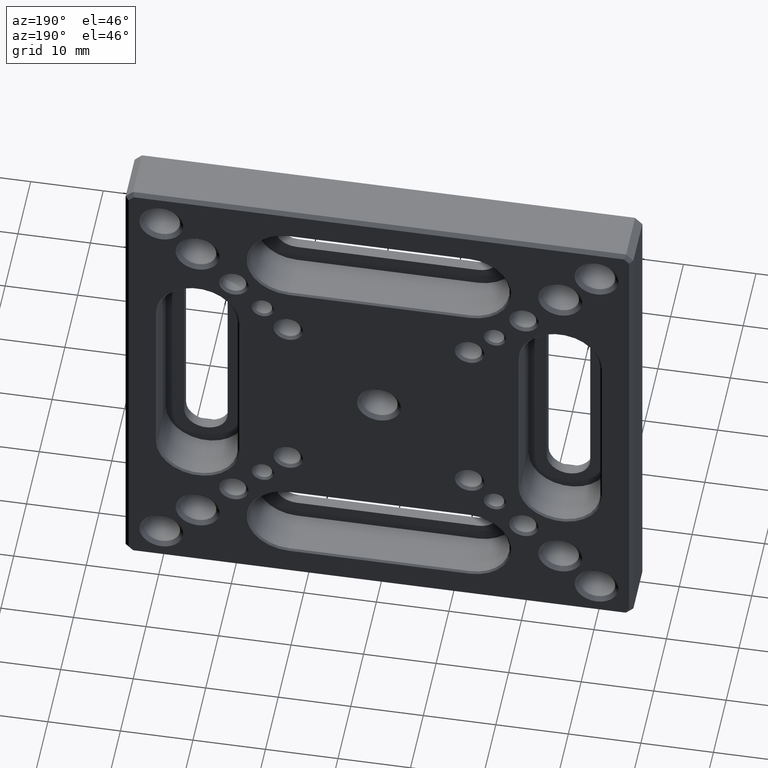
[diagram: clean part render]
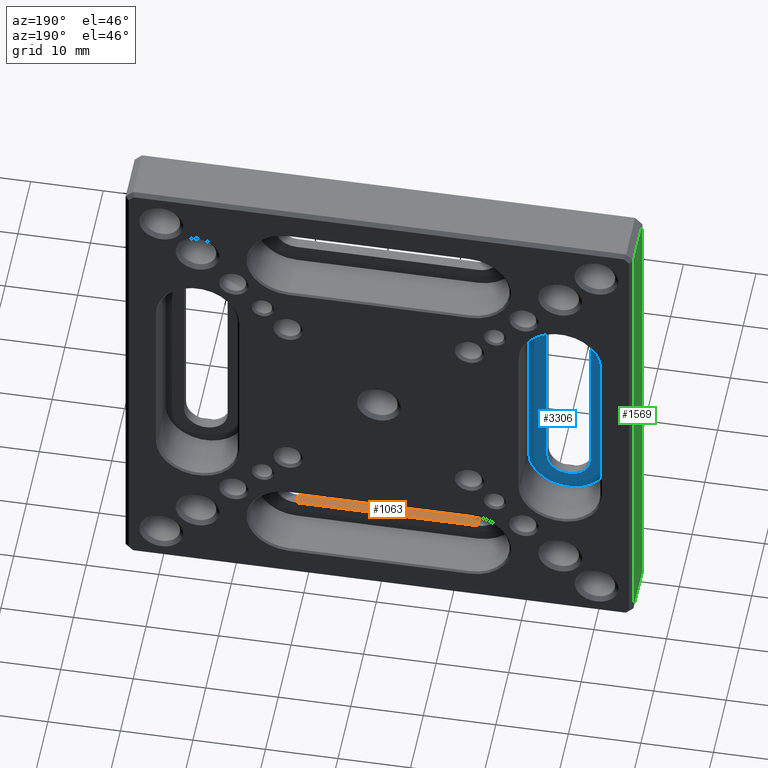
[diagram: same view with three faces highlighted in distinct colors, each labeled with its STEP entity id]
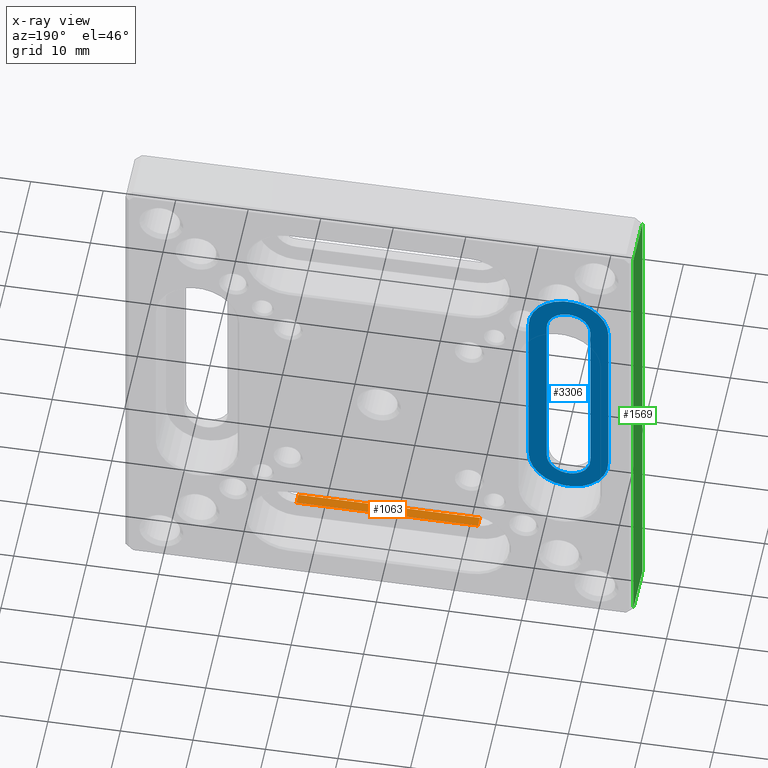
[diagram: x-ray of the same camera — body ghosted, the three highlighted faces saturated]
A machine part, auxiliary view with three faces highlighted in distinct colors.
The next image is the same camera in x-ray (body ghosted, the three faces saturated) — at least one of them is partly hidden behind the body in this view.
Their STEP definitions:

[orange] entity #1063 — the highlighted planar face has unit normal (0, 0, -1).
#135 = VECTOR ( 'NONE', #2198, 1000.000000000000000 ) ;
#272 = CARTESIAN_POINT ( 'NONE',  ( -12.50000000000000533, 1.500000000000000444, -28.00000000000000355 ) ) ;
#277 = LINE ( 'NONE', #568, #1849 ) ;
#290 = VECTOR ( 'NONE', #392, 1000.000000000000000 ) ;
#337 = LINE ( 'NONE', #1181, #290 ) ;
#364 = CARTESIAN_POINT ( 'NONE',  ( -12.50000000000000533, 1.500000000000000444, -28.00000000000000355 ) ) ;
#392 = DIRECTION ( 'NONE',  ( -0.000000000000000000, 1.000000000000000000, -0.000000000000000000 ) ) ;
#414 = CARTESIAN_POINT ( 'NONE',  ( -12.50000000000000533, 0.000000000000000000, -28.00000000000000355 ) ) ;
#458 = ORIENTED_EDGE ( 'NONE', *, *, #1078, .T. ) ;
#545 = EDGE_CURVE ( 'NONE', #2305, #1794, #277, .T. ) ;
#568 = CARTESIAN_POINT ( 'NONE',  ( -12.50000000000000533, 0.000000000000000000, -28.00000000000000355 ) ) ;
#607 = AXIS2_PLACEMENT_3D ( 'NONE', #414, #1183, #2453 ) ;
#687 = VERTEX_POINT ( 'NONE', #2732 ) ;
#696 = EDGE_CURVE ( 'NONE', #902, #687, #1151, .T. ) ;
#809 = DIRECTION ( 'NONE',  ( -1.000000000000000000, -0.000000000000000000, -0.000000000000000000 ) ) ;
#902 = VERTEX_POINT ( 'NONE', #272 ) ;
#907 = CARTESIAN_POINT ( 'NONE',  ( 12.49999999999999467, 0.000000000000000000, -28.00000000000000355 ) ) ;
#941 = FACE_OUTER_BOUND ( 'NONE', #1631, .T. ) ;
#1012 = ORIENTED_EDGE ( 'NONE', *, *, #1245, .F. ) ;
#1063 = ADVANCED_FACE ( 'NONE', ( #941 ), #2778, .F. ) ;
#1078 = EDGE_CURVE ( 'NONE', #2305, #687, #2214, .T. ) ;
#1151 = LINE ( 'NONE', #364, #1258 ) ;
#1181 = CARTESIAN_POINT ( 'NONE',  ( -12.50000000000000533, 0.000000000000000000, -28.00000000000000355 ) ) ;
#1183 = DIRECTION ( 'NONE',  ( 0.000000000000000000, 0.000000000000000000, -1.000000000000000000 ) ) ;
#1245 = EDGE_CURVE ( 'NONE', #1794, #902, #337, .T. ) ;
#1258 = VECTOR ( 'NONE', #2473, 1000.000000000000000 ) ;
#1330 = CARTESIAN_POINT ( 'NONE',  ( 12.49999999999999467, 0.000000000000000000, -28.00000000000000355 ) ) ;
#1631 = EDGE_LOOP ( 'NONE', ( #3000, #1012, #2637, #458 ) ) ;
#1794 = VERTEX_POINT ( 'NONE', #2012 ) ;
#1849 = VECTOR ( 'NONE', #809, 1000.000000000000000 ) ;
#2012 = CARTESIAN_POINT ( 'NONE',  ( -12.50000000000000533, 0.000000000000000000, -28.00000000000000355 ) ) ;
#2198 = DIRECTION ( 'NONE',  ( -0.000000000000000000, 1.000000000000000000, -0.000000000000000000 ) ) ;
#2214 = LINE ( 'NONE', #907, #135 ) ;
#2305 = VERTEX_POINT ( 'NONE', #1330 ) ;
#2453 = DIRECTION ( 'NONE',  ( -1.000000000000000000, 0.000000000000000000, -0.000000000000000000 ) ) ;
#2473 = DIRECTION ( 'NONE',  ( 1.000000000000000000, -0.000000000000000000, 0.000000000000000000 ) ) ;
#2637 = ORIENTED_EDGE ( 'NONE', *, *, #545, .F. ) ;
#2732 = CARTESIAN_POINT ( 'NONE',  ( 12.49999999999999467, 1.500000000000000444, -28.00000000000000355 ) ) ;
#2778 = PLANE ( 'NONE',  #607 ) ;
#3000 = ORIENTED_EDGE ( 'NONE', *, *, #696, .F. ) ;

[blue] entity #3306 — the highlighted planar face has unit normal (0, 1, 0).
#69 = DIRECTION ( 'NONE',  ( -0.000000000000000000, -1.000000000000000000, -0.000000000000000000 ) ) ;
#70 = ORIENTED_EDGE ( 'NONE', *, *, #1432, .T. ) ;
#130 = CARTESIAN_POINT ( 'NONE',  ( -25.00000000000000711, 1.500000000000000444, 12.49999999999999645 ) ) ;
#175 = CARTESIAN_POINT ( 'NONE',  ( -30.50000000000000711, 1.500000000000000444, -12.50000000000000355 ) ) ;
#179 = AXIS2_PLACEMENT_3D ( 'NONE', #639, #1400, #347 ) ;
#185 = CIRCLE ( 'NONE', #2727, 5.499999999999998224 ) ;
#198 = ORIENTED_EDGE ( 'NONE', *, *, #1431, .T. ) ;
#204 = EDGE_CURVE ( 'NONE', #330, #1111, #1189, .T. ) ;
#211 = LINE ( 'NONE', #3347, #2693 ) ;
#213 = VERTEX_POINT ( 'NONE', #655 ) ;
#330 = VERTEX_POINT ( 'NONE', #1552 ) ;
#347 = DIRECTION ( 'NONE',  ( 0.000000000000000000, -0.000000000000000000, 1.000000000000000000 ) ) ;
#382 = PLANE ( 'NONE',  #179 ) ;
#413 = ORIENTED_EDGE ( 'NONE', *, *, #444, .T. ) ;
#417 = AXIS2_PLACEMENT_3D ( 'NONE', #863, #601, #1608 ) ;
#444 = EDGE_CURVE ( 'NONE', #213, #1809, #793, .T. ) ;
#479 = VERTEX_POINT ( 'NONE', #2435 ) ;
#525 = VECTOR ( 'NONE', #2513, 1000.000000000000000 ) ;
#601 = DIRECTION ( 'NONE',  ( 0.000000000000000000, 1.000000000000000000, 0.000000000000000000 ) ) ;
#617 = AXIS2_PLACEMENT_3D ( 'NONE', #1381, #69, #865 ) ;
#639 = CARTESIAN_POINT ( 'NONE',  ( -25.00000000000000711, 1.500000000000000444, -12.50000000000000355 ) ) ;
#655 = CARTESIAN_POINT ( 'NONE',  ( -19.50000000000001066, 1.500000000000000444, -12.50000000000000355 ) ) ;
#713 = DIRECTION ( 'NONE',  ( 0.000000000000000000, 0.000000000000000000, 1.000000000000000000 ) ) ;
#793 = CIRCLE ( 'NONE', #417, 5.499999999999998224 ) ;
#863 = CARTESIAN_POINT ( 'NONE',  ( -25.00000000000000711, 1.500000000000000444, -12.50000000000000355 ) ) ;
#865 = DIRECTION ( 'NONE',  ( 0.000000000000000000, 0.000000000000000000, 1.000000000000000000 ) ) ;
#870 = ORIENTED_EDGE ( 'NONE', *, *, #204, .T. ) ;
#897 = DIRECTION ( 'NONE',  ( 0.000000000000000000, 0.000000000000000000, 1.000000000000000000 ) ) ;
#964 = EDGE_CURVE ( 'NONE', #1945, #213, #1654, .T. ) ;
#1044 = DIRECTION ( 'NONE',  ( -0.000000000000000000, -0.000000000000000000, -1.000000000000000000 ) ) ;
#1090 = CARTESIAN_POINT ( 'NONE',  ( -30.50000000000000711, 1.500000000000000444, -12.50000000000000355 ) ) ;
#1111 = VERTEX_POINT ( 'NONE', #1987 ) ;
#1135 = ORIENTED_EDGE ( 'NONE', *, *, #964, .T. ) ;
#1167 = CIRCLE ( 'NONE', #617, 2.999999999999999112 ) ;
#1178 = CARTESIAN_POINT ( 'NONE',  ( -30.50000000000000711, 1.500000000000000444, 12.49999999999999467 ) ) ;
#1189 = LINE ( 'NONE', #1440, #525 ) ;
#1284 = CARTESIAN_POINT ( 'NONE',  ( -25.00000000000000711, 1.500000000000000444, 12.49999999999999645 ) ) ;
#1381 = CARTESIAN_POINT ( 'NONE',  ( -25.00000000000000711, 1.500000000000000444, -12.50000000000000355 ) ) ;
#1400 = DIRECTION ( 'NONE',  ( 0.000000000000000000, 1.000000000000000000, 0.000000000000000000 ) ) ;
#1431 = EDGE_CURVE ( 'NONE', #3139, #330, #1565, .T. ) ;
#1432 = EDGE_CURVE ( 'NONE', #1809, #2814, #3194, .T. ) ;
#1440 = CARTESIAN_POINT ( 'NONE',  ( -28.00000000000000711, 1.500000000000000444, 12.49999999999999645 ) ) ;
#1457 = AXIS2_PLACEMENT_3D ( 'NONE', #1284, #1559, #1844 ) ;
#1552 = CARTESIAN_POINT ( 'NONE',  ( -28.00000000000000711, 1.500000000000000444, 12.49999999999999645 ) ) ;
#1559 = DIRECTION ( 'NONE',  ( -0.000000000000000000, -1.000000000000000000, -0.000000000000000000 ) ) ;
#1565 = CIRCLE ( 'NONE', #1457, 2.999999999999999112 ) ;
#1567 = EDGE_CURVE ( 'NONE', #2814, #1945, #185, .T. ) ;
#1589 = VECTOR ( 'NONE', #1044, 1000.000000000000000 ) ;
#1608 = DIRECTION ( 'NONE',  ( 0.000000000000000000, 0.000000000000000000, 1.000000000000000000 ) ) ;
#1654 = LINE ( 'NONE', #2711, #1589 ) ;
#1667 = EDGE_LOOP ( 'NONE', ( #198, #870, #2270, #3337 ) ) ;
#1783 = EDGE_CURVE ( 'NONE', #479, #3139, #211, .T. ) ;
#1809 = VERTEX_POINT ( 'NONE', #175 ) ;
#1829 = ORIENTED_EDGE ( 'NONE', *, *, #1567, .T. ) ;
#1844 = DIRECTION ( 'NONE',  ( 0.000000000000000000, 0.000000000000000000, 1.000000000000000000 ) ) ;
#1945 = VERTEX_POINT ( 'NONE', #2992 ) ;
#1947 = DIRECTION ( 'NONE',  ( 0.000000000000000000, 1.000000000000000000, 0.000000000000000000 ) ) ;
#1958 = FACE_BOUND ( 'NONE', #1667, .T. ) ;
#1987 = CARTESIAN_POINT ( 'NONE',  ( -28.00000000000000711, 1.500000000000000444, -12.50000000000000355 ) ) ;
#2123 = VECTOR ( 'NONE', #2654, 1000.000000000000000 ) ;
#2204 = EDGE_LOOP ( 'NONE', ( #413, #70, #1829, #1135 ) ) ;
#2270 = ORIENTED_EDGE ( 'NONE', *, *, #3417, .T. ) ;
#2435 = CARTESIAN_POINT ( 'NONE',  ( -22.00000000000001066, 1.500000000000000444, -12.50000000000000355 ) ) ;
#2513 = DIRECTION ( 'NONE',  ( 0.000000000000000000, 0.000000000000000000, -1.000000000000000000 ) ) ;
#2616 = CARTESIAN_POINT ( 'NONE',  ( -22.00000000000001066, 1.500000000000000444, 12.49999999999999645 ) ) ;
#2654 = DIRECTION ( 'NONE',  ( 0.000000000000000000, 0.000000000000000000, 1.000000000000000000 ) ) ;
#2693 = VECTOR ( 'NONE', #713, 1000.000000000000000 ) ;
#2711 = CARTESIAN_POINT ( 'NONE',  ( -19.50000000000001066, 1.500000000000000444, -12.50000000000000355 ) ) ;
#2716 = FACE_OUTER_BOUND ( 'NONE', #2204, .T. ) ;
#2727 = AXIS2_PLACEMENT_3D ( 'NONE', #130, #1947, #897 ) ;
#2814 = VERTEX_POINT ( 'NONE', #1178 ) ;
#2992 = CARTESIAN_POINT ( 'NONE',  ( -19.50000000000001066, 1.500000000000000444, 12.49999999999999645 ) ) ;
#3139 = VERTEX_POINT ( 'NONE', #2616 ) ;
#3194 = LINE ( 'NONE', #1090, #2123 ) ;
#3306 = ADVANCED_FACE ( 'NONE', ( #2716, #1958 ), #382, .T. ) ;
#3337 = ORIENTED_EDGE ( 'NONE', *, *, #1783, .T. ) ;
#3347 = CARTESIAN_POINT ( 'NONE',  ( -22.00000000000001066, 1.500000000000000444, 12.49999999999999645 ) ) ;
#3417 = EDGE_CURVE ( 'NONE', #1111, #479, #1167, .T. ) ;

[green] entity #1569 — the highlighted planar face has unit normal (1, 0, -0).
#4 = ORIENTED_EDGE ( 'NONE', *, *, #1773, .T. ) ;
#31 = VECTOR ( 'NONE', #331, 1000.000000000000000 ) ;
#97 = EDGE_CURVE ( 'NONE', #832, #2385, #1106, .T. ) ;
#200 = CARTESIAN_POINT ( 'NONE',  ( -35.00000000000000711, 8.000000000000000000, -34.00000000000002132 ) ) ;
#313 = LINE ( 'NONE', #1438, #3170 ) ;
#331 = DIRECTION ( 'NONE',  ( 0.000000000000000000, 1.000000000000000000, 0.000000000000000000 ) ) ;
#425 = CARTESIAN_POINT ( 'NONE',  ( -35.00000000000000711, 7.500000000000013323, -34.00000000000002132 ) ) ;
#625 = AXIS2_PLACEMENT_3D ( 'NONE', #2982, #918, #2240 ) ;
#672 = DIRECTION ( 'NONE',  ( -1.982541115402065110E-16, 0.000000000000000000, -1.000000000000000000 ) ) ;
#832 = VERTEX_POINT ( 'NONE', #1832 ) ;
#918 = DIRECTION ( 'NONE',  ( 1.000000000000000000, 0.000000000000000000, -1.982541115402065110E-16 ) ) ;
#1106 = LINE ( 'NONE', #1367, #31 ) ;
#1313 = EDGE_CURVE ( 'NONE', #3024, #2274, #3128, .T. ) ;
#1367 = CARTESIAN_POINT ( 'NONE',  ( -34.99999999999999289, 8.000000000000000000, 33.99999999999999289 ) ) ;
#1438 = CARTESIAN_POINT ( 'NONE',  ( -35.00000000000000711, 0.5000000000000143219, -35.00000000000000711 ) ) ;
#1442 = FACE_OUTER_BOUND ( 'NONE', #2623, .T. ) ;
#1455 = ORIENTED_EDGE ( 'NONE', *, *, #1313, .T. ) ;
#1523 = LINE ( 'NONE', #2582, #1704 ) ;
#1569 = ADVANCED_FACE ( 'NONE', ( #1442 ), #1978, .F. ) ;
#1620 = VECTOR ( 'NONE', #3385, 1000.000000000000000 ) ;
#1704 = VECTOR ( 'NONE', #672, 1000.000000000000000 ) ;
#1773 = EDGE_CURVE ( 'NONE', #2385, #3024, #1523, .T. ) ;
#1832 = CARTESIAN_POINT ( 'NONE',  ( -34.99999999999999289, 0.5000000000000143219, 33.99999999999999289 ) ) ;
#1944 = DIRECTION ( 'NONE',  ( 1.982541115402065110E-16, 0.000000000000000000, 1.000000000000000000 ) ) ;
#1978 = PLANE ( 'NONE',  #625 ) ;
#2087 = ORIENTED_EDGE ( 'NONE', *, *, #3307, .T. ) ;
#2240 = DIRECTION ( 'NONE',  ( -1.982541115402065110E-16, 0.000000000000000000, -1.000000000000000000 ) ) ;
#2274 = VERTEX_POINT ( 'NONE', #3326 ) ;
#2385 = VERTEX_POINT ( 'NONE', #2577 ) ;
#2577 = CARTESIAN_POINT ( 'NONE',  ( -34.99999999999999289, 7.500000000000013323, 33.99999999999999289 ) ) ;
#2582 = CARTESIAN_POINT ( 'NONE',  ( -35.00000000000000711, 7.500000000000013323, -34.00000000000002132 ) ) ;
#2623 = EDGE_LOOP ( 'NONE', ( #3196, #4, #1455, #2087 ) ) ;
#2982 = CARTESIAN_POINT ( 'NONE',  ( -35.00000000000000711, 8.000000000000000000, -35.00000000000000711 ) ) ;
#3024 = VERTEX_POINT ( 'NONE', #425 ) ;
#3128 = LINE ( 'NONE', #200, #1620 ) ;
#3170 = VECTOR ( 'NONE', #1944, 1000.000000000000000 ) ;
#3196 = ORIENTED_EDGE ( 'NONE', *, *, #97, .T. ) ;
#3307 = EDGE_CURVE ( 'NONE', #2274, #832, #313, .T. ) ;
#3326 = CARTESIAN_POINT ( 'NONE',  ( -35.00000000000000711, 0.5000000000000143219, -34.00000000000002132 ) ) ;
#3385 = DIRECTION ( 'NONE',  ( 0.000000000000000000, -1.000000000000000000, 0.000000000000000000 ) ) ;